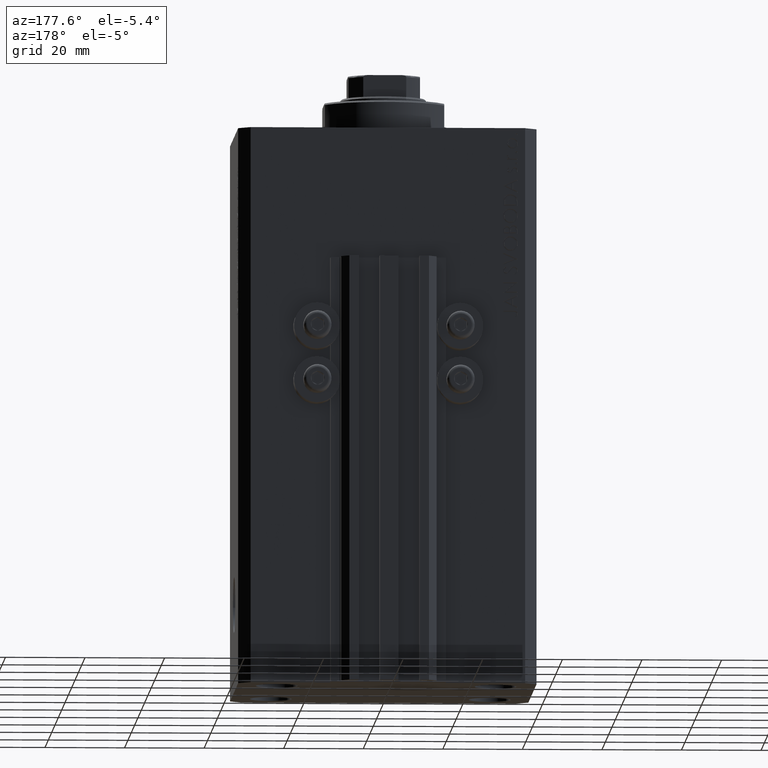
[diagram: clean part render]
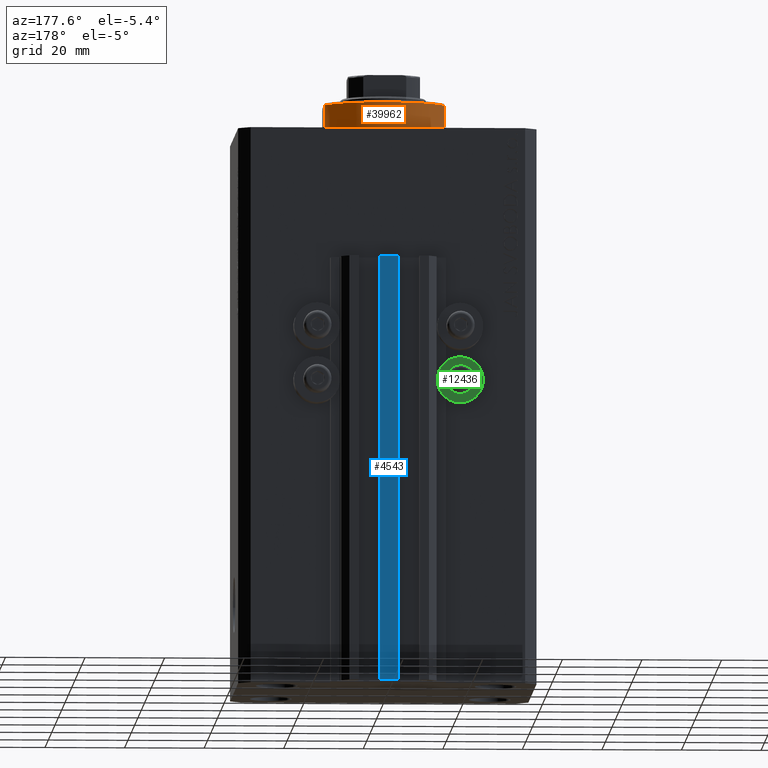
[diagram: same view with three faces highlighted in distinct colors, each labeled with its STEP entity id]
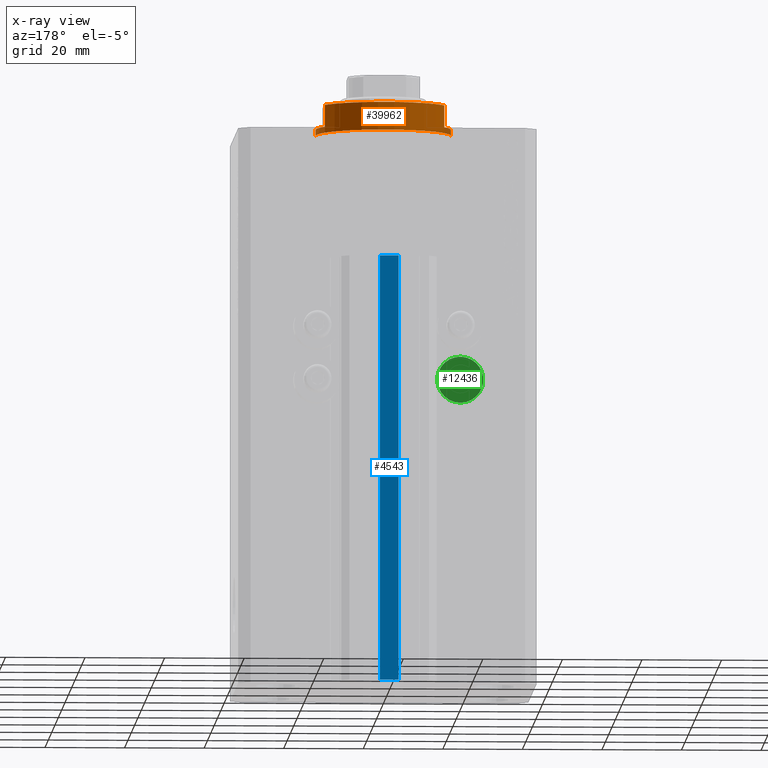
[diagram: x-ray of the same camera — body ghosted, the three highlighted faces saturated]
A machine part, auxiliary view with three faces highlighted in distinct colors.
The next image is the same camera in x-ray (body ghosted, the three faces saturated) — at least one of them is partly hidden behind the body in this view.
Their STEP definitions:

[orange] entity #39962 — the highlighted cylindrical surface (partial cylindrical patch) has radius 17 mm, axis along (0, 0, -1).
#57 = CARTESIAN_POINT ( 'NONE',  ( -17.00000000000000000, 2.081899558550500280E-15, -0.5000000000000004441 ) ) ;
#443 = VERTEX_POINT ( 'NONE', #14999 ) ;
#859 = EDGE_LOOP ( 'NONE', ( #14341, #31758, #38350, #23206, #3633, #11046, #25372, #4525 ) ) ;
#2795 = AXIS2_PLACEMENT_3D ( 'NONE', #23122, #44620, #19999 ) ;
#2978 = DIRECTION ( 'NONE',  ( -0.000000000000000000, -0.000000000000000000, 1.000000000000000000 ) ) ;
#3093 = CIRCLE ( 'NONE', #19876, 17.00000000000000000 ) ;
#3633 = ORIENTED_EDGE ( 'NONE', *, *, #6204, .F. ) ;
#4525 = ORIENTED_EDGE ( 'NONE', *, *, #33324, .T. ) ;
#4862 = EDGE_CURVE ( 'NONE', #23033, #21014, #46493, .T. ) ;
#6080 = EDGE_CURVE ( 'NONE', #12904, #11456, #35229, .T. ) ;
#6087 = CARTESIAN_POINT ( 'NONE',  ( 14.99999999999999645, 8.000000000000003553, -2.000000000000000000 ) ) ;
#6204 = EDGE_CURVE ( 'NONE', #38983, #23033, #18953, .T. ) ;
#7163 = VERTEX_POINT ( 'NONE', #37368 ) ;
#7766 = CARTESIAN_POINT ( 'NONE',  ( 0.000000000000000000, 0.000000000000000000, -2.000000000000000000 ) ) ;
#9251 = VECTOR ( 'NONE', #17733, 1000.000000000000000 ) ;
#9897 = FACE_OUTER_BOUND ( 'NONE', #859, .T. ) ;
#10468 = AXIS2_PLACEMENT_3D ( 'NONE', #7766, #22548, #18728 ) ;
#10932 = EDGE_CURVE ( 'NONE', #11456, #21014, #21847, .T. ) ;
#11046 = ORIENTED_EDGE ( 'NONE', *, *, #23848, .F. ) ;
#11456 = VERTEX_POINT ( 'NONE', #57 ) ;
#12112 = VECTOR ( 'NONE', #35711, 1000.000000000000000 ) ;
#12326 = EDGE_CURVE ( 'NONE', #23949, #7163, #28749, .T. ) ;
#12792 = DIRECTION ( 'NONE',  ( 0.000000000000000000, 0.000000000000000000, 1.000000000000000000 ) ) ;
#12904 = VERTEX_POINT ( 'NONE', #36242 ) ;
#13715 = DIRECTION ( 'NONE',  ( 1.000000000000000000, 0.000000000000000000, 0.000000000000000000 ) ) ;
#13926 = LINE ( 'NONE', #43532, #9251 ) ;
#14341 = ORIENTED_EDGE ( 'NONE', *, *, #30901, .F. ) ;
#14999 = CARTESIAN_POINT ( 'NONE',  ( -14.99999999999999645, 8.000000000000003553, -2.000000000000000000 ) ) ;
#16987 = CARTESIAN_POINT ( 'NONE',  ( 17.00000000000000000, 0.000000000000000000, -0.5000000000000004441 ) ) ;
#17070 = CARTESIAN_POINT ( 'NONE',  ( -17.00000000000000000, 2.081899558550500280E-15, -8.000000000000000000 ) ) ;
#17520 = CARTESIAN_POINT ( 'NONE',  ( 0.000000000000000000, 0.000000000000000000, -8.000000000000000000 ) ) ;
#17733 = DIRECTION ( 'NONE',  ( -0.000000000000000000, -0.000000000000000000, 1.000000000000000000 ) ) ;
#18728 = DIRECTION ( 'NONE',  ( -1.000000000000000000, 0.000000000000000000, 0.000000000000000000 ) ) ;
#18816 = AXIS2_PLACEMENT_3D ( 'NONE', #42617, #12792, #45972 ) ;
#18854 = CARTESIAN_POINT ( 'NONE',  ( 17.00000000000000000, 0.000000000000000000, -2.000000000000000000 ) ) ;
#18884 = VECTOR ( 'NONE', #20941, 1000.000000000000000 ) ;
#18953 = CIRCLE ( 'NONE', #10468, 17.00000000000000000 ) ;
#19335 = DIRECTION ( 'NONE',  ( -1.000000000000000000, 0.000000000000000000, 0.000000000000000000 ) ) ;
#19876 = AXIS2_PLACEMENT_3D ( 'NONE', #45361, #44658, #19335 ) ;
#19999 = DIRECTION ( 'NONE',  ( 1.000000000000000000, 0.000000000000000000, 0.000000000000000000 ) ) ;
#20941 = DIRECTION ( 'NONE',  ( -0.000000000000000000, -0.000000000000000000, 1.000000000000000000 ) ) ;
#21014 = VERTEX_POINT ( 'NONE', #16987 ) ;
#21630 = DIRECTION ( 'NONE',  ( -0.000000000000000000, -0.000000000000000000, 1.000000000000000000 ) ) ;
#21847 = CIRCLE ( 'NONE', #2795, 17.00000000000000000 ) ;
#21865 = CARTESIAN_POINT ( 'NONE',  ( 15.00000000000000000, 8.000000000000001776, -8.000000000000000000 ) ) ;
#22548 = DIRECTION ( 'NONE',  ( 0.000000000000000000, 0.000000000000000000, -1.000000000000000000 ) ) ;
#23033 = VERTEX_POINT ( 'NONE', #18854 ) ;
#23122 = CARTESIAN_POINT ( 'NONE',  ( 0.000000000000000000, 0.000000000000000000, -0.5000000000000004441 ) ) ;
#23206 = ORIENTED_EDGE ( 'NONE', *, *, #4862, .F. ) ;
#23848 = EDGE_CURVE ( 'NONE', #23949, #38983, #35740, .T. ) ;
#23949 = VERTEX_POINT ( 'NONE', #24742 ) ;
#24219 = CYLINDRICAL_SURFACE ( 'NONE', #34636, 17.00000000000000000 ) ;
#24742 = CARTESIAN_POINT ( 'NONE',  ( 15.00000000000000000, 8.000000000000001776, -7.500000000000007105 ) ) ;
#25372 = ORIENTED_EDGE ( 'NONE', *, *, #12326, .T. ) ;
#28749 = CIRCLE ( 'NONE', #18816, 17.00000000000000000 ) ;
#30901 = EDGE_CURVE ( 'NONE', #12904, #443, #3093, .T. ) ;
#31758 = ORIENTED_EDGE ( 'NONE', *, *, #6080, .T. ) ;
#31998 = VECTOR ( 'NONE', #21630, 1000.000000000000000 ) ;
#33324 = EDGE_CURVE ( 'NONE', #7163, #443, #13926, .T. ) ;
#34636 = AXIS2_PLACEMENT_3D ( 'NONE', #17520, #2978, #13715 ) ;
#35229 = LINE ( 'NONE', #17070, #12112 ) ;
#35711 = DIRECTION ( 'NONE',  ( -0.000000000000000000, -0.000000000000000000, 1.000000000000000000 ) ) ;
#35740 = LINE ( 'NONE', #21865, #31998 ) ;
#36242 = CARTESIAN_POINT ( 'NONE',  ( -17.00000000000000000, 2.081899558550500280E-15, -2.000000000000000000 ) ) ;
#37368 = CARTESIAN_POINT ( 'NONE',  ( -15.00000000000000000, 8.000000000000001776, -7.500000000000007105 ) ) ;
#38350 = ORIENTED_EDGE ( 'NONE', *, *, #10932, .T. ) ;
#38983 = VERTEX_POINT ( 'NONE', #6087 ) ;
#39564 = CARTESIAN_POINT ( 'NONE',  ( 17.00000000000000000, 0.000000000000000000, -8.000000000000000000 ) ) ;
#39962 = ADVANCED_FACE ( 'NONE', ( #9897 ), #24219, .T. ) ;
#42617 = CARTESIAN_POINT ( 'NONE',  ( 0.000000000000000000, 0.000000000000000000, -7.500000000000007105 ) ) ;
#43532 = CARTESIAN_POINT ( 'NONE',  ( -15.00000000000000000, 8.000000000000001776, -8.000000000000000000 ) ) ;
#44620 = DIRECTION ( 'NONE',  ( -0.000000000000000000, -0.000000000000000000, -1.000000000000000000 ) ) ;
#44658 = DIRECTION ( 'NONE',  ( 0.000000000000000000, 0.000000000000000000, -1.000000000000000000 ) ) ;
#45361 = CARTESIAN_POINT ( 'NONE',  ( 0.000000000000000000, 0.000000000000000000, -2.000000000000000000 ) ) ;
#45972 = DIRECTION ( 'NONE',  ( -1.000000000000000000, 0.000000000000000000, 0.000000000000000000 ) ) ;
#46493 = LINE ( 'NONE', #39564, #18884 ) ;

[blue] entity #4543 — the highlighted planar face has unit normal (0, -1, 0).
#1005 = DIRECTION ( 'NONE',  ( 0.000000000000000000, 0.000000000000000000, 1.000000000000000000 ) ) ;
#3161 = EDGE_CURVE ( 'NONE', #30072, #9380, #41340, .T. ) ;
#4526 = CARTESIAN_POINT ( 'NONE',  ( -2.350000000000003642, 35.50000000000001421, -140.0000000000000000 ) ) ;
#4543 = ADVANCED_FACE ( 'NONE', ( #42452 ), #13325, .F. ) ;
#5312 = CARTESIAN_POINT ( 'NONE',  ( 2.349999999999999645, 35.50000000000001421, -140.0000000000000000 ) ) ;
#6178 = DIRECTION ( 'NONE',  ( 0.000000000000000000, -1.000000000000000000, 0.000000000000000000 ) ) ;
#8110 = VERTEX_POINT ( 'NONE', #38265 ) ;
#8575 = DIRECTION ( 'NONE',  ( 1.000000000000000000, 0.000000000000000000, 0.000000000000000000 ) ) ;
#8764 = ORIENTED_EDGE ( 'NONE', *, *, #3161, .T. ) ;
#9380 = VERTEX_POINT ( 'NONE', #32477 ) ;
#9470 = CARTESIAN_POINT ( 'NONE',  ( -2.350000000000003642, 35.50000000000001421, -140.0000000000000000 ) ) ;
#9744 = CARTESIAN_POINT ( 'NONE',  ( -2.350000000000003642, 35.50000000000001421, -140.0000000000000000 ) ) ;
#9967 = AXIS2_PLACEMENT_3D ( 'NONE', #9744, #6178, #35294 ) ;
#11957 = EDGE_CURVE ( 'NONE', #30072, #20925, #41986, .T. ) ;
#12231 = LINE ( 'NONE', #5312, #20927 ) ;
#13325 = PLANE ( 'NONE',  #9967 ) ;
#15797 = VECTOR ( 'NONE', #8575, 1000.000000000000000 ) ;
#15850 = EDGE_LOOP ( 'NONE', ( #21294, #29020, #34011, #8764 ) ) ;
#18448 = CARTESIAN_POINT ( 'NONE',  ( -2.350000000000003642, 35.50000000000001421, -33.00000000000000000 ) ) ;
#19841 = VECTOR ( 'NONE', #1005, 1000.000000000000000 ) ;
#19853 = DIRECTION ( 'NONE',  ( 0.000000000000000000, 0.000000000000000000, 1.000000000000000000 ) ) ;
#19921 = VECTOR ( 'NONE', #21795, 1000.000000000000000 ) ;
#20925 = VERTEX_POINT ( 'NONE', #40908 ) ;
#20927 = VECTOR ( 'NONE', #19853, 1000.000000000000000 ) ;
#21294 = ORIENTED_EDGE ( 'NONE', *, *, #28079, .T. ) ;
#21795 = DIRECTION ( 'NONE',  ( 1.000000000000000000, 0.000000000000000000, 0.000000000000000000 ) ) ;
#26770 = CARTESIAN_POINT ( 'NONE',  ( -2.350000000000003642, 35.50000000000001421, -140.0000000000000000 ) ) ;
#28079 = EDGE_CURVE ( 'NONE', #9380, #8110, #28980, .T. ) ;
#28980 = LINE ( 'NONE', #18448, #19921 ) ;
#29020 = ORIENTED_EDGE ( 'NONE', *, *, #41228, .F. ) ;
#30072 = VERTEX_POINT ( 'NONE', #9470 ) ;
#32477 = CARTESIAN_POINT ( 'NONE',  ( -2.350000000000003642, 35.50000000000001421, -33.00000000000000000 ) ) ;
#34011 = ORIENTED_EDGE ( 'NONE', *, *, #11957, .F. ) ;
#35294 = DIRECTION ( 'NONE',  ( 0.000000000000000000, -0.000000000000000000, -1.000000000000000000 ) ) ;
#38265 = CARTESIAN_POINT ( 'NONE',  ( 2.349999999999999645, 35.50000000000001421, -33.00000000000000000 ) ) ;
#40908 = CARTESIAN_POINT ( 'NONE',  ( 2.349999999999999645, 35.50000000000001421, -140.0000000000000000 ) ) ;
#41228 = EDGE_CURVE ( 'NONE', #20925, #8110, #12231, .T. ) ;
#41340 = LINE ( 'NONE', #26770, #19841 ) ;
#41986 = LINE ( 'NONE', #4526, #15797 ) ;
#42452 = FACE_OUTER_BOUND ( 'NONE', #15850, .T. ) ;

[green] entity #12436 — the highlighted planar face has unit normal (0, -1, 0).
#195 = VERTEX_POINT ( 'NONE', #31541 ) ;
#499 = CIRCLE ( 'NONE', #43187, 2.000000000000001776 ) ;
#1926 = DIRECTION ( 'NONE',  ( 0.000000000000000000, 0.000000000000000000, -1.000000000000000000 ) ) ;
#4492 = CIRCLE ( 'NONE', #14385, 5.799999999999999822 ) ;
#5516 = DIRECTION ( 'NONE',  ( -0.000000000000000000, -1.000000000000000000, -0.000000000000000000 ) ) ;
#6243 = EDGE_CURVE ( 'NONE', #37238, #18192, #4492, .T. ) ;
#6822 = EDGE_LOOP ( 'NONE', ( #23307, #36246 ) ) ;
#7522 = CARTESIAN_POINT ( 'NONE',  ( -12.20000000000000284, 32.49999999996100541, -64.00000000000000000 ) ) ;
#8182 = CARTESIAN_POINT ( 'NONE',  ( -18.00000000000000355, 32.49999999996100541, -69.79999999999999716 ) ) ;
#8625 = CARTESIAN_POINT ( 'NONE',  ( -18.00000000000000355, 32.49999999996100541, -64.00000000000000000 ) ) ;
#11646 = EDGE_CURVE ( 'NONE', #36721, #195, #499, .T. ) ;
#12436 = ADVANCED_FACE ( 'NONE', ( #43332, #29487 ), #25902, .F. ) ;
#13050 = DIRECTION ( 'NONE',  ( -0.000000000000000000, -1.000000000000000000, -0.000000000000000000 ) ) ;
#14385 = AXIS2_PLACEMENT_3D ( 'NONE', #21836, #22310, #29732 ) ;
#16025 = ORIENTED_EDGE ( 'NONE', *, *, #6243, .F. ) ;
#16317 = EDGE_CURVE ( 'NONE', #18192, #37238, #39749, .T. ) ;
#18007 = DIRECTION ( 'NONE',  ( 0.000000000000000000, -1.000000000000000000, 0.000000000000000000 ) ) ;
#18192 = VERTEX_POINT ( 'NONE', #36059 ) ;
#19030 = EDGE_LOOP ( 'NONE', ( #16025, #41879 ) ) ;
#19658 = EDGE_CURVE ( 'NONE', #195, #36721, #46377, .T. ) ;
#21836 = CARTESIAN_POINT ( 'NONE',  ( -18.00000000000000355, 32.49999999996100541, -64.00000000000000000 ) ) ;
#22310 = DIRECTION ( 'NONE',  ( -0.000000000000000000, -1.000000000000000000, -0.000000000000000000 ) ) ;
#23307 = ORIENTED_EDGE ( 'NONE', *, *, #11646, .T. ) ;
#23880 = DIRECTION ( 'NONE',  ( -0.000000000000000000, -1.000000000000000000, -0.000000000000000000 ) ) ;
#25234 = AXIS2_PLACEMENT_3D ( 'NONE', #39140, #5516, #1926 ) ;
#25902 = PLANE ( 'NONE',  #31029 ) ;
#28082 = AXIS2_PLACEMENT_3D ( 'NONE', #45762, #13050, #28571 ) ;
#28571 = DIRECTION ( 'NONE',  ( 0.000000000000000000, 0.000000000000000000, -1.000000000000000000 ) ) ;
#29487 = FACE_OUTER_BOUND ( 'NONE', #19030, .T. ) ;
#29732 = DIRECTION ( 'NONE',  ( 0.000000000000000000, 0.000000000000000000, -1.000000000000000000 ) ) ;
#31029 = AXIS2_PLACEMENT_3D ( 'NONE', #7522, #18007, #36402 ) ;
#31541 = CARTESIAN_POINT ( 'NONE',  ( -18.00000000000000355, 32.49999999996100541, -66.00000000000000000 ) ) ;
#36059 = CARTESIAN_POINT ( 'NONE',  ( -18.00000000000000355, 32.49999999996100541, -58.20000000000000284 ) ) ;
#36246 = ORIENTED_EDGE ( 'NONE', *, *, #19658, .T. ) ;
#36402 = DIRECTION ( 'NONE',  ( 0.000000000000000000, 0.000000000000000000, 1.000000000000000000 ) ) ;
#36721 = VERTEX_POINT ( 'NONE', #41709 ) ;
#37238 = VERTEX_POINT ( 'NONE', #8182 ) ;
#38443 = DIRECTION ( 'NONE',  ( 0.000000000000000000, 0.000000000000000000, -1.000000000000000000 ) ) ;
#39140 = CARTESIAN_POINT ( 'NONE',  ( -18.00000000000000355, 32.49999999996100541, -64.00000000000000000 ) ) ;
#39749 = CIRCLE ( 'NONE', #25234, 5.799999999999999822 ) ;
#41709 = CARTESIAN_POINT ( 'NONE',  ( -18.00000000000000355, 32.49999999996100541, -62.00000000000000000 ) ) ;
#41879 = ORIENTED_EDGE ( 'NONE', *, *, #16317, .F. ) ;
#43187 = AXIS2_PLACEMENT_3D ( 'NONE', #8625, #23880, #38443 ) ;
#43332 = FACE_BOUND ( 'NONE', #6822, .T. ) ;
#45762 = CARTESIAN_POINT ( 'NONE',  ( -18.00000000000000355, 32.49999999996100541, -64.00000000000000000 ) ) ;
#46377 = CIRCLE ( 'NONE', #28082, 2.000000000000001776 ) ;